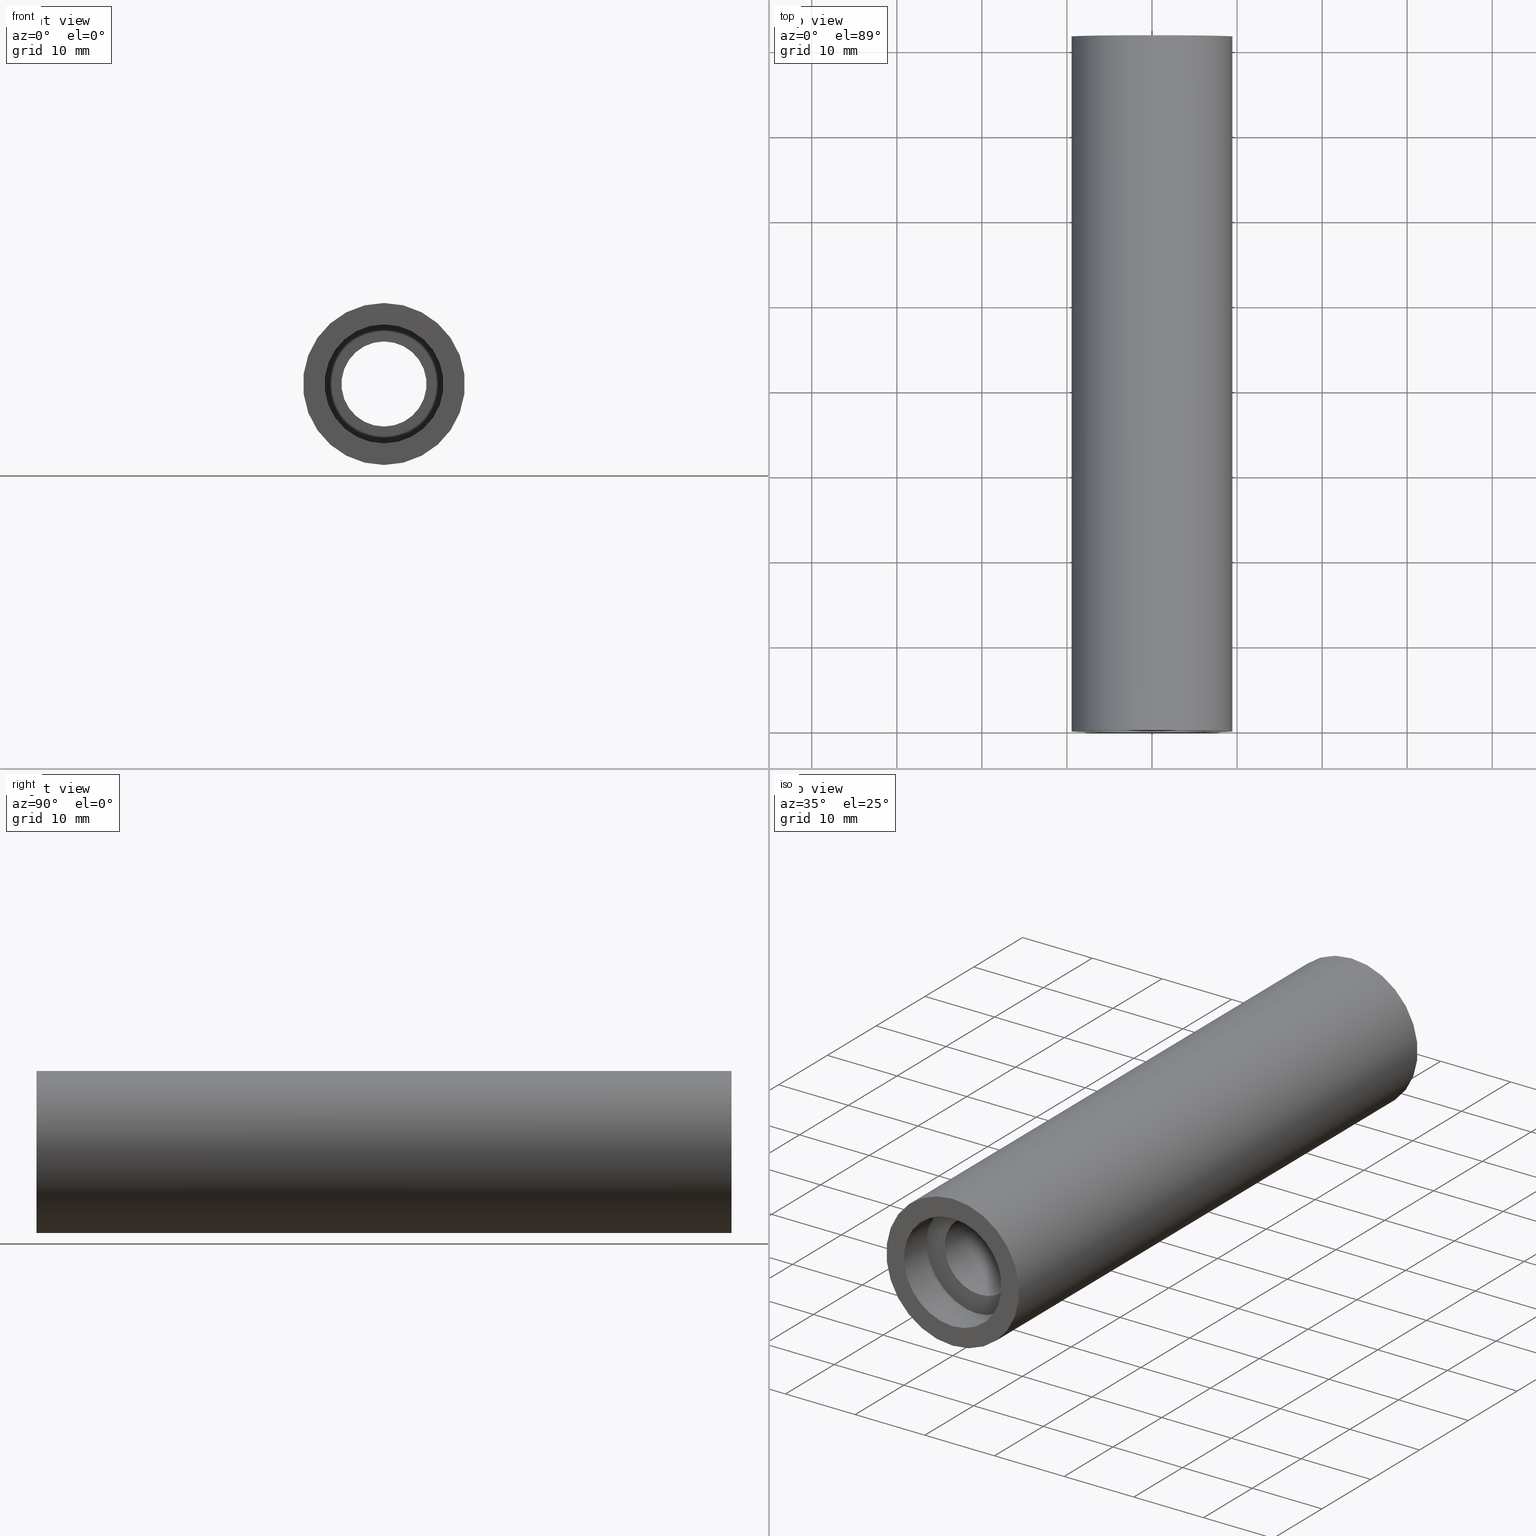
[diagram: canonical four-view strip — front | top / right | iso, engineering-drawing reading convention]
A machine part, canonical four-view strip (front | top / right | iso — engineering-drawing reading convention). The complete STEP part file that produces these views, byte-faithful:
ISO-10303-21;
HEADER;
FILE_DESCRIPTION (( 'STEP AP214' ),
    '1' );
FILE_NAME ('503094.STEP',
    '2019-09-11T07:39:38',
    ( '' ),
    ( '' ),
    'SwSTEP 2.0',
    'SolidWorks 2016',
    '' );
FILE_SCHEMA (( 'AUTOMOTIVE_DESIGN' ));
ENDSEC;

DATA;
#1 = FACE_OUTER_BOUND ( 'NONE', #246, .T. ) ;
#2 = ADVANCED_FACE ( 'NONE', ( #20 ), #486, .F. ) ;
#3 = AXIS2_PLACEMENT_3D ( 'NONE', #559, #416, #271 ) ;
#4 = VERTEX_POINT ( 'NONE', #10 ) ;
#5 = ADVANCED_FACE ( 'NONE', ( #220, #91 ), #57, .F. ) ;
#6 = EDGE_LOOP ( 'NONE', ( #395, #59 ) ) ;
#7 =( GEOMETRIC_REPRESENTATION_CONTEXT ( 3 ) GLOBAL_UNCERTAINTY_ASSIGNED_CONTEXT ( ( #243 ) ) GLOBAL_UNIT_ASSIGNED_CONTEXT ( ( #324, #516, #171 ) ) REPRESENTATION_CONTEXT ( 'NONE', 'WORKASPACE' ) );
#8 = CARTESIAN_POINT ( 'NONE',  ( 1.166476076187856400E-015, 161.3761669434274500, -9.525000000000019900 ) ) ;
#9 = AXIS2_PLACEMENT_3D ( 'NONE', #100, #54, #152 ) ;
#10 = CARTESIAN_POINT ( 'NONE',  ( 0.0000000000000000000, -2.775557561562891400E-014, 9.525000000000019900 ) ) ;
#11 = CYLINDRICAL_SURFACE ( 'NONE', #35, 7.600000000000019200 ) ;
#12 = EDGE_LOOP ( 'NONE', ( #267, #604 ) ) ;
#13 = AXIS2_PLACEMENT_3D ( 'NONE', #410, #501, #365 ) ;
#14 = LINE ( 'NONE', #254, #356 ) ;
#15 =( NAMED_UNIT ( * ) SI_UNIT ( $, .STERADIAN. ) SOLID_ANGLE_UNIT ( ) );
#16 = FILL_AREA_STYLE ('',( #258 ) ) ;
#17 = STYLED_ITEM ( 'NONE', ( #287 ), #431 ) ;
#18 = DIRECTION ( 'NONE',  ( 0.0000000000000000000, 0.0000000000000000000, 1.000000000000000000 ) ) ;
#19 = DIRECTION ( 'NONE',  ( -0.0000000000000000000, 1.000000000000000000, -0.0000000000000000000 ) ) ;
#20 = FACE_OUTER_BOUND ( 'NONE', #84, .T. ) ;
#21 = ORIENTED_EDGE ( 'NONE', *, *, #509, .F. ) ;
#22 = APPLICATION_CONTEXT ( 'automotive_design' ) ;
#23 = CARTESIAN_POINT ( 'NONE',  ( 7.000000000000020400, -1.634585625335647100E-014, 0.0000000000000000000 ) ) ;
#24 = AXIS2_PLACEMENT_3D ( 'NONE', #586, #203, #62 ) ;
#25 = PRODUCT_DEFINITION_SHAPE ( 'NONE', 'NONE',  #304 ) ;
#26 = CARTESIAN_POINT ( 'NONE',  ( 0.0000000000000000000, 77.19999999999997400, 7.600000000000019200 ) ) ;
#27 = DIRECTION ( 'NONE',  ( -0.0000000000000000000, 1.000000000000000000, -0.0000000000000000000 ) ) ;
#28 = VERTEX_POINT ( 'NONE', #394 ) ;
#29 = CARTESIAN_POINT ( 'NONE',  ( 9.307315673519907200E-016, 161.3761669434274500, -7.600000000000019200 ) ) ;
#30 = COLOUR_RGB ( '',1.000000000000000000, 1.000000000000000000, 1.000000000000000000 ) ;
#31 = ORIENTED_EDGE ( 'NONE', *, *, #89, .T. ) ;
#32 = VERTEX_POINT ( 'NONE', #205 ) ;
#33 = DIRECTION ( 'NONE',  ( 0.0000000000000000000, 0.0000000000000000000, 1.000000000000000000 ) ) ;
#34 = DIRECTION ( 'NONE',  ( -0.0000000000000000000, 1.000000000000000000, 0.0000000000000000000 ) ) ;
#35 = AXIS2_PLACEMENT_3D ( 'NONE', #561, #317, #78 ) ;
#36 = PRODUCT_DEFINITION_CONTEXT ( 'detailed design', #373, 'design' ) ;
#37 = CARTESIAN_POINT ( 'NONE',  ( 0.0000000000000000000, 161.3761669434274500, 7.600000000000019200 ) ) ;
#38 = AXIS2_PLACEMENT_3D ( 'NONE', #55, #578, #584 ) ;
#39 = DIRECTION ( 'NONE',  ( 0.0000000000000000000, 0.0000000000000000000, 1.000000000000000000 ) ) ;
#40 = EDGE_LOOP ( 'NONE', ( #48, #228, #164, #183 ) ) ;
#41 = ORIENTED_EDGE ( 'NONE', *, *, #383, .F. ) ;
#42 =( LENGTH_UNIT ( ) NAMED_UNIT ( * ) SI_UNIT ( .MILLI., .METRE. ) );
#43 = AXIS2_PLACEMENT_3D ( 'NONE', #624, #180, #384 ) ;
#44 =( LENGTH_UNIT ( ) NAMED_UNIT ( * ) SI_UNIT ( .MILLI., .METRE. ) );
#45 = EDGE_CURVE ( 'NONE', #529, #337, #321, .T. ) ;
#46 = ORIENTED_EDGE ( 'NONE', *, *, #595, .T. ) ;
#47 = ORIENTED_EDGE ( 'NONE', *, *, #255, .F. ) ;
#48 = ORIENTED_EDGE ( 'NONE', *, *, #49, .F. ) ;
#49 = EDGE_CURVE ( 'NONE', #127, #32, #521, .T. ) ;
#50 = LINE ( 'NONE', #37, #230 ) ;
#51 = ORIENTED_EDGE ( 'NONE', *, *, #120, .F. ) ;
#52 = AXIS2_PLACEMENT_3D ( 'NONE', #133, #570, #39 ) ;
#53 = ORIENTED_EDGE ( 'NONE', *, *, #415, .T. ) ;
#54 = DIRECTION ( 'NONE',  ( -0.0000000000000000000, 1.000000000000000000, -0.0000000000000000000 ) ) ;
#55 = CARTESIAN_POINT ( 'NONE',  ( 0.0000000000000000000, 76.19999999999997400, 0.0000000000000000000 ) ) ;
#56 = UNCERTAINTY_MEASURE_WITH_UNIT (LENGTH_MEASURE( 1.000000000000000100E-005 ), #350, 'distance_accuracy_value', 'NONE');
#57 = PLANE ( 'NONE',  #579 ) ;
#58 = ORIENTED_EDGE ( 'NONE', *, *, #480, .F. ) ;
#59 = ORIENTED_EDGE ( 'NONE', *, *, #573, .F. ) ;
#60 = CARTESIAN_POINT ( 'NONE',  ( 0.0000000000000000000, 77.19999999999997400, 0.0000000000000000000 ) ) ;
#61 = SURFACE_SIDE_STYLE ('',( #396 ) ) ;
#62 = DIRECTION ( 'NONE',  ( 0.0000000000000000000, 0.0000000000000000000, 1.000000000000000000 ) ) ;
#63 = AXIS2_PLACEMENT_3D ( 'NONE', #518, #375, #83 ) ;
#64 =( NAMED_UNIT ( * ) PLANE_ANGLE_UNIT ( ) SI_UNIT ( $, .RADIAN. ) );
#65 =( NAMED_UNIT ( * ) PLANE_ANGLE_UNIT ( ) SI_UNIT ( $, .RADIAN. ) );
#66 = CARTESIAN_POINT ( 'NONE',  ( 9.307315673519907200E-016, 77.19999999999997400, -7.600000000000019200 ) ) ;
#67 = CIRCLE ( 'NONE', #281, 7.200000000000009900 ) ;
#68 =( GEOMETRIC_REPRESENTATION_CONTEXT ( 3 ) GLOBAL_UNCERTAINTY_ASSIGNED_CONTEXT ( ( #160 ) ) GLOBAL_UNIT_ASSIGNED_CONTEXT ( ( #169, #65, #352 ) ) REPRESENTATION_CONTEXT ( 'NONE', 'WORKASPACE' ) );
#69 = CARTESIAN_POINT ( 'NONE',  ( 0.0000000000000000000, 5.499999999999976900, 0.0000000000000000000 ) ) ;
#70 = CARTESIAN_POINT ( 'NONE',  ( 0.0000000000000000000, -2.775557561562891400E-014, 0.0000000000000000000 ) ) ;
#71 = CARTESIAN_POINT ( 'NONE',  ( 1.166476076187856400E-015, 81.69999999999998900, -9.525000000000019900 ) ) ;
#72 = AXIS2_PLACEMENT_3D ( 'NONE', #359, #161, #453 ) ;
#73 = DIRECTION ( 'NONE',  ( -0.0000000000000000000, 1.000000000000000000, -0.0000000000000000000 ) ) ;
#74 = FACE_OUTER_BOUND ( 'NONE', #40, .T. ) ;
#75 = ORIENTED_EDGE ( 'NONE', *, *, #163, .T. ) ;
#76 = ORIENTED_EDGE ( 'NONE', *, *, #469, .F. ) ;
#77 = EDGE_CURVE ( 'NONE', #572, #400, #190, .T. ) ;
#78 = DIRECTION ( 'NONE',  ( 0.0000000000000000000, 0.0000000000000000000, 1.000000000000000000 ) ) ;
#79 = CARTESIAN_POINT ( 'NONE',  ( 5.000000000000019500, 5.499999999999983100, 0.0000000000000000000 ) ) ;
#80 = PRESENTATION_LAYER_ASSIGNMENT (  '', '', ( #234 ) ) ;
#81 = CIRCLE ( 'NONE', #9, 9.525000000000019900 ) ;
#82 = CIRCLE ( 'NONE', #63, 7.000000000000020400 ) ;
#83 = DIRECTION ( 'NONE',  ( 0.0000000000000000000, 0.0000000000000000000, 1.000000000000000000 ) ) ;
#84 = EDGE_LOOP ( 'NONE', ( #47, #97, #92, #461 ) ) ;
#85 = DIRECTION ( 'NONE',  ( -0.0000000000000000000, 1.000000000000000000, -0.0000000000000000000 ) ) ;
#86 = PRESENTATION_LAYER_ASSIGNMENT (  '', '', ( #616 ) ) ;
#87 = CARTESIAN_POINT ( 'NONE',  ( 0.0000000000000000000, 4.499999999999976000, 0.0000000000000000000 ) ) ;
#88 = ADVANCED_FACE ( 'NONE', ( #117 ), #581, .T. ) ;
#89 = EDGE_CURVE ( 'NONE', #590, #151, #571, .T. ) ;
#90 =( NAMED_UNIT ( * ) SI_UNIT ( $, .STERADIAN. ) SOLID_ANGLE_UNIT ( ) );
#91 = FACE_OUTER_BOUND ( 'NONE', #12, .T. ) ;
#92 = ORIENTED_EDGE ( 'NONE', *, *, #329, .T. ) ;
#93 = ORIENTED_EDGE ( 'NONE', *, *, #484, .F. ) ;
#94 = DIRECTION ( 'NONE',  ( 0.0000000000000000000, 0.0000000000000000000, 1.000000000000000000 ) ) ;
#95 = ADVANCED_FACE ( 'NONE', ( #198 ), #339, .F. ) ;
#96 =( GEOMETRIC_REPRESENTATION_CONTEXT ( 3 ) GLOBAL_UNCERTAINTY_ASSIGNED_CONTEXT ( ( #460 ) ) GLOBAL_UNIT_ASSIGNED_CONTEXT ( ( #454, #166, #598 ) ) REPRESENTATION_CONTEXT ( 'NONE', 'WORKASPACE' ) );
#97 = ORIENTED_EDGE ( 'NONE', *, *, #187, .F. ) ;
#98 = FACE_BOUND ( 'NONE', #249, .T. ) ;
#99 = EDGE_CURVE ( 'NONE', #145, #400, #172, .T. ) ;
#100 = CARTESIAN_POINT ( 'NONE',  ( 0.0000000000000000000, 81.69999999999998900, 0.0000000000000000000 ) ) ;
#101 = DIRECTION ( 'NONE',  ( 0.0000000000000000000, 0.0000000000000000000, 1.000000000000000000 ) ) ;
#102 = VECTOR ( 'NONE', #162, 1000.000000000000000 ) ;
#103 = MECHANICAL_DESIGN_GEOMETRIC_PRESENTATION_REPRESENTATION (  '', ( #616 ), #7 ) ;
#104 = ORIENTED_EDGE ( 'NONE', *, *, #329, .F. ) ;
#105 = DIRECTION ( 'NONE',  ( -0.0000000000000000000, 1.000000000000000000, -0.0000000000000000000 ) ) ;
#106 = EDGE_CURVE ( 'NONE', #145, #613, #67, .T. ) ;
#107 = DIRECTION ( 'NONE',  ( -0.0000000000000000000, 1.000000000000000000, -0.0000000000000000000 ) ) ;
#108 = FILL_AREA_STYLE ('',( #502 ) ) ;
#109 = CARTESIAN_POINT ( 'NONE',  ( 0.0000000000000000000, 161.3761669434274500, 0.0000000000000000000 ) ) ;
#110 = MECHANICAL_DESIGN_GEOMETRIC_PRESENTATION_REPRESENTATION (  '', ( #234 ), #179 ) ;
#111 = ORIENTED_EDGE ( 'NONE', *, *, #106, .F. ) ;
#112 = DIRECTION ( 'NONE',  ( -0.0000000000000000000, 1.000000000000000000, -0.0000000000000000000 ) ) ;
#113 = AXIS2_PLACEMENT_3D ( 'NONE', #612, #468, #463 ) ;
#114 = CARTESIAN_POINT ( 'NONE',  ( 0.0000000000000000000, 77.19999999999997400, 7.200000000000009900 ) ) ;
#115 = SURFACE_SIDE_STYLE ('',( #445 ) ) ;
#116 = CARTESIAN_POINT ( 'NONE',  ( 0.0000000000000000000, 4.499999999999976000, 7.600000000000019200 ) ) ;
#117 = FACE_OUTER_BOUND ( 'NONE', #143, .T. ) ;
#118 =( NAMED_UNIT ( * ) PLANE_ANGLE_UNIT ( ) SI_UNIT ( $, .RADIAN. ) );
#119 = ORIENTED_EDGE ( 'NONE', *, *, #390, .F. ) ;
#120 = EDGE_CURVE ( 'NONE', #239, #346, #81, .T. ) ;
#121 = SURFACE_STYLE_USAGE ( .BOTH. , #178 ) ;
#122 = UNCERTAINTY_MEASURE_WITH_UNIT (LENGTH_MEASURE( 1.000000000000000100E-005 ), #270, 'distance_accuracy_value', 'NONE');
#123 = APPLICATION_PROTOCOL_DEFINITION ( 'draft international standard', 'automotive_design', 1998, #373 ) ;
#124 = FACE_OUTER_BOUND ( 'NONE', #540, .T. ) ;
#125 = ORIENTED_EDGE ( 'NONE', *, *, #299, .F. ) ;
#126 = DIRECTION ( 'NONE',  ( 0.0000000000000000000, 0.0000000000000000000, 1.000000000000000000 ) ) ;
#127 = VERTEX_POINT ( 'NONE', #580 ) ;
#128 = DIRECTION ( 'NONE',  ( -0.0000000000000000000, 1.000000000000000000, -0.0000000000000000000 ) ) ;
#129 = PLANE ( 'NONE',  #3 ) ;
#130 = FILL_AREA_STYLE ('',( #233 ) ) ;
#131 = CARTESIAN_POINT ( 'NONE',  ( 0.0000000000000000000, 5.499999999999976900, 5.000000000000019500 ) ) ;
#132 = EDGE_CURVE ( 'NONE', #386, #241, #235, .T. ) ;
#133 = CARTESIAN_POINT ( 'NONE',  ( 0.0000000000000000000, 5.499999999999976900, 0.0000000000000000000 ) ) ;
#134 = DIRECTION ( 'NONE',  ( -0.0000000000000000000, 1.000000000000000000, -0.0000000000000000000 ) ) ;
#135 = ORIENTED_EDGE ( 'NONE', *, *, #480, .T. ) ;
#136 = PRESENTATION_STYLE_ASSIGNMENT (( #403 ) ) ;
#137 = CARTESIAN_POINT ( 'NONE',  ( 0.0000000000000000000, 4.499999999999976000, 7.000000000000020400 ) ) ;
#138 =( GEOMETRIC_REPRESENTATION_CONTEXT ( 3 ) GLOBAL_UNCERTAINTY_ASSIGNED_CONTEXT ( ( #122 ) ) GLOBAL_UNIT_ASSIGNED_CONTEXT ( ( #270, #617, #377 ) ) REPRESENTATION_CONTEXT ( 'NONE', 'WORKASPACE' ) );
#139 = DIRECTION ( 'NONE',  ( -0.0000000000000000000, 1.000000000000000000, -0.0000000000000000000 ) ) ;
#140 = PRODUCT_RELATED_PRODUCT_CATEGORY ( 'part', '', ( #532 ) ) ;
#141 = EDGE_CURVE ( 'NONE', #381, #239, #379, .T. ) ;
#142 = FACE_OUTER_BOUND ( 'NONE', #372, .T. ) ;
#143 = EDGE_LOOP ( 'NONE', ( #257, #345, #425, #51 ) ) ;
#144 = CIRCLE ( 'NONE', #489, 5.000000000000019500 ) ;
#145 = VERTEX_POINT ( 'NONE', #215 ) ;
#146 = EDGE_CURVE ( 'NONE', #312, #440, #275, .T. ) ;
#147 = MECHANICAL_DESIGN_GEOMETRIC_PRESENTATION_REPRESENTATION (  '', ( #17 ), #236 ) ;
#148 = LINE ( 'NONE', #29, #591 ) ;
#149 = DIRECTION ( 'NONE',  ( 0.0000000000000000000, 0.0000000000000000000, 1.000000000000000000 ) ) ;
#150 = CIRCLE ( 'NONE', #43, 7.200000000000009900 ) ;
#151 = VERTEX_POINT ( 'NONE', #26 ) ;
#152 = DIRECTION ( 'NONE',  ( 0.0000000000000000000, 0.0000000000000000000, 1.000000000000000000 ) ) ;
#153 = EDGE_CURVE ( 'NONE', #241, #386, #575, .T. ) ;
#154 = CARTESIAN_POINT ( 'NONE',  ( 6.123233995736789000E-016, 161.3761669434274500, -5.000000000000019500 ) ) ;
#155 = ORIENTED_EDGE ( 'NONE', *, *, #311, .F. ) ;
#156 = ORIENTED_EDGE ( 'NONE', *, *, #219, .F. ) ;
#157 = DIRECTION ( 'NONE',  ( 0.0000000000000000000, 0.0000000000000000000, 1.000000000000000000 ) ) ;
#158 = STYLED_ITEM ( 'NONE', ( #291 ), #562 ) ;
#159 = DIRECTION ( 'NONE',  ( -0.0000000000000000000, 1.000000000000000000, -0.0000000000000000000 ) ) ;
#160 = UNCERTAINTY_MEASURE_WITH_UNIT (LENGTH_MEASURE( 1.000000000000000100E-005 ), #169, 'distance_accuracy_value', 'NONE');
#161 = DIRECTION ( 'NONE',  ( 0.0000000000000000000, -1.000000000000000000, 0.0000000000000000000 ) ) ;
#162 = DIRECTION ( 'NONE',  ( -0.0000000000000000000, 1.000000000000000000, -0.0000000000000000000 ) ) ;
#163 = EDGE_CURVE ( 'NONE', #583, #28, #475, .T. ) ;
#164 = ORIENTED_EDGE ( 'NONE', *, *, #146, .T. ) ;
#165 = ORIENTED_EDGE ( 'NONE', *, *, #537, .F. ) ;
#166 =( NAMED_UNIT ( * ) PLANE_ANGLE_UNIT ( ) SI_UNIT ( $, .RADIAN. ) );
#167 = CARTESIAN_POINT ( 'NONE',  ( 0.0000000000000000000, 161.3761669434274500, 0.0000000000000000000 ) ) ;
#168 = DIRECTION ( 'NONE',  ( -0.0000000000000000000, 1.000000000000000000, -0.0000000000000000000 ) ) ;
#169 =( LENGTH_UNIT ( ) NAMED_UNIT ( * ) SI_UNIT ( .MILLI., .METRE. ) );
#170 = AXIS2_PLACEMENT_3D ( 'NONE', #507, #112, #404 ) ;
#171 =( NAMED_UNIT ( * ) SI_UNIT ( $, .STERADIAN. ) SOLID_ANGLE_UNIT ( ) );
#172 = LINE ( 'NONE', #441, #620 ) ;
#173 = PRESENTATION_STYLE_ASSIGNMENT (( #477 ) ) ;
#174 = ORIENTED_EDGE ( 'NONE', *, *, #187, .T. ) ;
#175 = PRESENTATION_LAYER_ASSIGNMENT (  '', '', ( #17 ) ) ;
#176 = ORIENTED_EDGE ( 'NONE', *, *, #99, .T. ) ;
#177 = DIRECTION ( 'NONE',  ( 0.0000000000000000000, 0.0000000000000000000, 1.000000000000000000 ) ) ;
#178 = SURFACE_SIDE_STYLE ('',( #197 ) ) ;
#179 =( GEOMETRIC_REPRESENTATION_CONTEXT ( 3 ) GLOBAL_UNCERTAINTY_ASSIGNED_CONTEXT ( ( #208 ) ) GLOBAL_UNIT_ASSIGNED_CONTEXT ( ( #402, #118, #218 ) ) REPRESENTATION_CONTEXT ( 'NONE', 'WORKASPACE' ) );
#180 = DIRECTION ( 'NONE',  ( -0.0000000000000000000, 1.000000000000000000, -0.0000000000000000000 ) ) ;
#181 = LINE ( 'NONE', #615, #273 ) ;
#182 = CARTESIAN_POINT ( 'NONE',  ( 0.0000000000000000000, 76.19999999999997400, 0.0000000000000000000 ) ) ;
#183 = ORIENTED_EDGE ( 'NONE', *, *, #484, .T. ) ;
#184 = AXIS2_PLACEMENT_3D ( 'NONE', #567, #274, #473 ) ;
#185 = LINE ( 'NONE', #297, #289 ) ;
#186 = CARTESIAN_POINT ( 'NONE',  ( 0.0000000000000000000, 161.3761669434274500, 0.0000000000000000000 ) ) ;
#187 = EDGE_CURVE ( 'NONE', #528, #555, #563, .T. ) ;
#188 = ADVANCED_FACE ( 'NONE', ( #423 ), #602, .F. ) ;
#189 = SURFACE_STYLE_USAGE ( .BOTH. , #614 ) ;
#190 = CIRCLE ( 'NONE', #444, 7.200000000000009900 ) ;
#191 = DIRECTION ( 'NONE',  ( 0.0000000000000000000, 0.0000000000000000000, 1.000000000000000000 ) ) ;
#192 = EDGE_LOOP ( 'NONE', ( #93, #119 ) ) ;
#193 = ADVANCED_FACE ( 'NONE', ( #74 ), #494, .F. ) ;
#194 = ORIENTED_EDGE ( 'NONE', *, *, #338, .F. ) ;
#195 = ADVANCED_FACE ( 'NONE', ( #421, #589 ), #493, .F. ) ;
#196 = PRESENTATION_LAYER_ASSIGNMENT (  '', '', ( #158 ) ) ;
#197 = SURFACE_STYLE_FILL_AREA ( #557 ) ;
#198 = FACE_OUTER_BOUND ( 'NONE', #232, .T. ) ;
#199 = CIRCLE ( 'NONE', #464, 7.000000000000020400 ) ;
#200 = ADVANCED_FACE ( 'NONE', ( #124 ), #265, .F. ) ;
#201 = DIRECTION ( 'NONE',  ( 0.0000000000000000000, 0.0000000000000000000, 1.000000000000000000 ) ) ;
#202 = AXIS2_PLACEMENT_3D ( 'NONE', #182, #378, #565 ) ;
#203 = DIRECTION ( 'NONE',  ( -0.0000000000000000000, 1.000000000000000000, -0.0000000000000000000 ) ) ;
#204 = ORIENTED_EDGE ( 'NONE', *, *, #427, .F. ) ;
#205 = CARTESIAN_POINT ( 'NONE',  ( 8.572527594031496900E-016, 4.499999999999976000, -7.000000000000020400 ) ) ;
#206 = MECHANICAL_DESIGN_GEOMETRIC_PRESENTATION_REPRESENTATION (  '', ( #307 ), #138 ) ;
#207 = CARTESIAN_POINT ( 'NONE',  ( 0.0000000000000000000, 81.69999999999997400, 0.0000000000000000000 ) ) ;
#208 = UNCERTAINTY_MEASURE_WITH_UNIT (LENGTH_MEASURE( 1.000000000000000100E-005 ), #402, 'distance_accuracy_value', 'NONE');
#209 = STYLED_ITEM ( 'NONE', ( #539 ), #193 ) ;
#210 =( NAMED_UNIT ( * ) SI_UNIT ( $, .STERADIAN. ) SOLID_ANGLE_UNIT ( ) );
#211 = VERTEX_POINT ( 'NONE', #594 ) ;
#212 = CARTESIAN_POINT ( 'NONE',  ( 0.0000000000000000000, 81.69999999999997400, 0.0000000000000000000 ) ) ;
#213 = ORIENTED_EDGE ( 'NONE', *, *, #360, .F. ) ;
#214 = SURFACE_SIDE_STYLE ('',( #446 ) ) ;
#215 = CARTESIAN_POINT ( 'NONE',  ( 8.817456953860955100E-016, 77.19999999999997400, -7.200000000000009900 ) ) ;
#216 = AXIS2_PLACEMENT_3D ( 'NONE', #382, #429, #330 ) ;
#217 = UNCERTAINTY_MEASURE_WITH_UNIT (LENGTH_MEASURE( 1.000000000000000100E-005 ), #593, 'distance_accuracy_value', 'NONE');
#218 =( NAMED_UNIT ( * ) SI_UNIT ( $, .STERADIAN. ) SOLID_ANGLE_UNIT ( ) );
#219 = EDGE_CURVE ( 'NONE', #400, #572, #482, .T. ) ;
#220 = FACE_BOUND ( 'NONE', #6, .T. ) ;
#221 = COLOUR_RGB ( '',1.000000000000000000, 1.000000000000000000, 1.000000000000000000 ) ;
#222 = ORIENTED_EDGE ( 'NONE', *, *, #132, .F. ) ;
#223 = CARTESIAN_POINT ( 'NONE',  ( 0.0000000000000000000, -2.775557561562891400E-014, 0.0000000000000000000 ) ) ;
#224 = EDGE_LOOP ( 'NONE', ( #111, #176, #492, #388 ) ) ;
#225 = CARTESIAN_POINT ( 'NONE',  ( 1.166476076187856400E-015, -2.775557561562891400E-014, -9.525000000000019900 ) ) ;
#226 = VECTOR ( 'NONE', #134, 1000.000000000000000 ) ;
#227 = DIRECTION ( 'NONE',  ( -0.0000000000000000000, 1.000000000000000000, -0.0000000000000000000 ) ) ;
#228 = ORIENTED_EDGE ( 'NONE', *, *, #595, .F. ) ;
#229 = MECHANICAL_DESIGN_GEOMETRIC_PRESENTATION_REPRESENTATION (  '', ( #158 ), #355 ) ;
#230 = VECTOR ( 'NONE', #414, 1000.000000000000000 ) ;
#231 = DIRECTION ( 'NONE',  ( -0.0000000000000000000, 1.000000000000000000, -0.0000000000000000000 ) ) ;
#232 = EDGE_LOOP ( 'NONE', ( #284, #391, #31, #165 ) ) ;
#233 = FILL_AREA_STYLE_COLOUR ( '', #522 ) ;
#234 = STYLED_ITEM ( 'NONE', ( #438 ), #188 ) ;
#235 = CIRCLE ( 'NONE', #38, 7.600000000000019200 ) ;
#236 =( GEOMETRIC_REPRESENTATION_CONTEXT ( 3 ) GLOBAL_UNCERTAINTY_ASSIGNED_CONTEXT ( ( #526 ) ) GLOBAL_UNIT_ASSIGNED_CONTEXT ( ( #44, #272, #622 ) ) REPRESENTATION_CONTEXT ( 'NONE', 'WORKASPACE' ) );
#237 = MECHANICAL_DESIGN_GEOMETRIC_PRESENTATION_REPRESENTATION (  '', ( #535 ), #295 ) ;
#238 = ADVANCED_FACE ( 'NONE', ( #1, #466 ), #301, .F. ) ;
#239 = VERTEX_POINT ( 'NONE', #71 ) ;
#240 = LINE ( 'NONE', #268, #226 ) ;
#241 = VERTEX_POINT ( 'NONE', #511 ) ;
#242 = AXIS2_PLACEMENT_3D ( 'NONE', #534, #488, #201 ) ;
#243 = UNCERTAINTY_MEASURE_WITH_UNIT (LENGTH_MEASURE( 1.000000000000000100E-005 ), #324, 'distance_accuracy_value', 'NONE');
#244 = AXIS2_PLACEMENT_3D ( 'NONE', #70, #227, #157 ) ;
#245 = EDGE_LOOP ( 'NONE', ( #452, #523, #204, #41 ) ) ;
#246 = EDGE_LOOP ( 'NONE', ( #370, #21 ) ) ;
#247 = EDGE_CURVE ( 'NONE', #392, #529, #144, .T. ) ;
#248 = DIRECTION ( 'NONE',  ( -0.0000000000000000000, 1.000000000000000000, -0.0000000000000000000 ) ) ;
#249 = EDGE_LOOP ( 'NONE', ( #292, #336 ) ) ;
#250 = CARTESIAN_POINT ( 'NONE',  ( 9.307315673519907200E-016, 4.499999999999976000, -7.600000000000019200 ) ) ;
#251 = DIRECTION ( 'NONE',  ( 0.0000000000000000000, 0.0000000000000000000, 1.000000000000000000 ) ) ;
#252 = AXIS2_PLACEMENT_3D ( 'NONE', #212, #550, #309 ) ;
#253 = DIRECTION ( 'NONE',  ( -0.0000000000000000000, 1.000000000000000000, -0.0000000000000000000 ) ) ;
#254 = CARTESIAN_POINT ( 'NONE',  ( 0.0000000000000000000, 161.3761669434274500, 7.600000000000019200 ) ) ;
#255 = EDGE_CURVE ( 'NONE', #555, #583, #181, .T. ) ;
#256 = DIRECTION ( 'NONE',  ( 0.0000000000000000000, 0.0000000000000000000, 1.000000000000000000 ) ) ;
#257 = ORIENTED_EDGE ( 'NONE', *, *, #141, .F. ) ;
#258 = FILL_AREA_STYLE_COLOUR ( '', #430 ) ;
#259 = APPLICATION_PROTOCOL_DEFINITION ( 'draft international standard', 'automotive_design', 1998, #22 ) ;
#260 = FILL_AREA_STYLE_COLOUR ( '', #343 ) ;
#261 = CIRCLE ( 'NONE', #398, 5.000000000000019500 ) ;
#262 =( GEOMETRIC_REPRESENTATION_CONTEXT ( 3 ) GLOBAL_UNCERTAINTY_ASSIGNED_CONTEXT ( ( #293 ) ) GLOBAL_UNIT_ASSIGNED_CONTEXT ( ( #42, #327, #90 ) ) REPRESENTATION_CONTEXT ( 'NONE', 'WORKASPACE' ) );
#263 = CARTESIAN_POINT ( 'NONE',  ( 0.0000000000000000000, 81.69999999999998900, 9.525000000000019900 ) ) ;
#264 = STYLED_ITEM ( 'NONE', ( #173 ), #436 ) ;
#265 = CYLINDRICAL_SURFACE ( 'NONE', #577, 7.600000000000019200 ) ;
#266 = CYLINDRICAL_SURFACE ( 'NONE', #420, 5.000000000000019500 ) ;
#267 = ORIENTED_EDGE ( 'NONE', *, *, #132, .T. ) ;
#268 = CARTESIAN_POINT ( 'NONE',  ( 0.0000000000000000000, 161.3761669434274500, 9.525000000000019900 ) ) ;
#269 = AXIS2_PLACEMENT_3D ( 'NONE', #544, #597, #498 ) ;
#270 =( LENGTH_UNIT ( ) NAMED_UNIT ( * ) SI_UNIT ( .MILLI., .METRE. ) );
#271 = DIRECTION ( 'NONE',  ( 0.0000000000000000000, -0.0000000000000000000, -1.000000000000000000 ) ) ;
#272 =( NAMED_UNIT ( * ) PLANE_ANGLE_UNIT ( ) SI_UNIT ( $, .RADIAN. ) );
#273 = VECTOR ( 'NONE', #73, 1000.000000000000000 ) ;
#274 = DIRECTION ( 'NONE',  ( -0.0000000000000000000, 1.000000000000000000, -0.0000000000000000000 ) ) ;
#275 = LINE ( 'NONE', #342, #102 ) ;
#276 = AXIS2_PLACEMENT_3D ( 'NONE', #69, #308, #18 ) ;
#277 = CIRCLE ( 'NONE', #52, 7.600000000000019200 ) ;
#278 = SURFACE_SIDE_STYLE ('',( #363 ) ) ;
#279 = ADVANCED_FACE ( 'NONE', ( #142, #98 ), #510, .F. ) ;
#280 = DIRECTION ( 'NONE',  ( 0.0000000000000000000, 0.0000000000000000000, 1.000000000000000000 ) ) ;
#281 = AXIS2_PLACEMENT_3D ( 'NONE', #296, #348, #149 ) ;
#282 = COLOUR_RGB ( '',1.000000000000000000, 1.000000000000000000, 1.000000000000000000 ) ;
#283 = ORIENTED_EDGE ( 'NONE', *, *, #437, .F. ) ;
#284 = ORIENTED_EDGE ( 'NONE', *, *, #153, .F. ) ;
#285 = AXIS2_PLACEMENT_3D ( 'NONE', #472, #139, #319 ) ;
#286 = FACE_OUTER_BOUND ( 'NONE', #467, .T. ) ;
#287 = PRESENTATION_STYLE_ASSIGNMENT (( #189 ) ) ;
#288 = EDGE_LOOP ( 'NONE', ( #46, #487 ) ) ;
#289 = VECTOR ( 'NONE', #546, 1000.000000000000000 ) ;
#290 = DIRECTION ( 'NONE',  ( -0.0000000000000000000, 1.000000000000000000, -0.0000000000000000000 ) ) ;
#291 = PRESENTATION_STYLE_ASSIGNMENT (( #542 ) ) ;
#292 = ORIENTED_EDGE ( 'NONE', *, *, #247, .T. ) ;
#293 = UNCERTAINTY_MEASURE_WITH_UNIT (LENGTH_MEASURE( 1.000000000000000100E-005 ), #42, 'distance_accuracy_value', 'NONE');
#294 = ORIENTED_EDGE ( 'NONE', *, *, #163, .F. ) ;
#295 =( GEOMETRIC_REPRESENTATION_CONTEXT ( 3 ) GLOBAL_UNCERTAINTY_ASSIGNED_CONTEXT ( ( #217 ) ) GLOBAL_UNIT_ASSIGNED_CONTEXT ( ( #593, #306, #15 ) ) REPRESENTATION_CONTEXT ( 'NONE', 'WORKASPACE' ) );
#296 = CARTESIAN_POINT ( 'NONE',  ( 0.0000000000000000000, 77.19999999999997400, 0.0000000000000000000 ) ) ;
#297 = CARTESIAN_POINT ( 'NONE',  ( 0.0000000000000000000, 161.3761669434274500, 7.200000000000009900 ) ) ;
#298 = DIRECTION ( 'NONE',  ( 0.0000000000000000000, 0.0000000000000000000, 1.000000000000000000 ) ) ;
#299 = EDGE_CURVE ( 'NONE', #127, #312, #353, .T. ) ;
#300 = CARTESIAN_POINT ( 'NONE',  ( 6.123233995736789000E-016, 5.499999999999976900, -5.000000000000019500 ) ) ;
#301 = PLANE ( 'NONE',  #504 ) ;
#302 = VECTOR ( 'NONE', #107, 1000.000000000000000 ) ;
#303 = SURFACE_STYLE_FILL_AREA ( #519 ) ;
#304 = PRODUCT_DEFINITION ( 'δ֪', '', #407, #36 ) ;
#305 = ORIENTED_EDGE ( 'NONE', *, *, #106, .T. ) ;
#306 =( NAMED_UNIT ( * ) PLANE_ANGLE_UNIT ( ) SI_UNIT ( $, .RADIAN. ) );
#307 = STYLED_ITEM ( 'NONE', ( #380 ), #495 ) ;
#308 = DIRECTION ( 'NONE',  ( -0.0000000000000000000, 1.000000000000000000, -0.0000000000000000000 ) ) ;
#309 = DIRECTION ( 'NONE',  ( 0.0000000000000000000, 0.0000000000000000000, 1.000000000000000000 ) ) ;
#310 = FILL_AREA_STYLE ('',( #601 ) ) ;
#311 = EDGE_CURVE ( 'NONE', #241, #590, #148, .T. ) ;
#312 = VERTEX_POINT ( 'NONE', #419 ) ;
#313 = CARTESIAN_POINT ( 'NONE',  ( 0.0000000000000000000, 5.499999999999976900, 0.0000000000000000000 ) ) ;
#314 = EDGE_LOOP ( 'NONE', ( #447, #305 ) ) ;
#315 = CLOSED_SHELL ( 'NONE', ( #525, #200, #431, #95, #436, #385, #238, #88, #331, #334, #568, #340, #5, #188, #279, #2, #195, #193 ) ) ;
#316 = DIRECTION ( 'NONE',  ( 0.0000000000000000000, 0.0000000000000000000, 1.000000000000000000 ) ) ;
#317 = DIRECTION ( 'NONE',  ( -0.0000000000000000000, 1.000000000000000000, -0.0000000000000000000 ) ) ;
#318 = AXIS2_PLACEMENT_3D ( 'NONE', #79, #34, #368 ) ;
#319 = DIRECTION ( 'NONE',  ( 0.0000000000000000000, 0.0000000000000000000, 1.000000000000000000 ) ) ;
#320 = CIRCLE ( 'NONE', #545, 7.000000000000020400 ) ;
#321 = LINE ( 'NONE', #154, #302 ) ;
#322 = CIRCLE ( 'NONE', #276, 5.000000000000019500 ) ;
#323 = PRODUCT_CONTEXT ( 'NONE', #22, 'mechanical' ) ;
#324 =( LENGTH_UNIT ( ) NAMED_UNIT ( * ) SI_UNIT ( .MILLI., .METRE. ) );
#325 = EDGE_LOOP ( 'NONE', ( #155, #222, #566, #558 ) ) ;
#326 = CYLINDRICAL_SURFACE ( 'NONE', #435, 7.000000000000020400 ) ;
#327 =( NAMED_UNIT ( * ) PLANE_ANGLE_UNIT ( ) SI_UNIT ( $, .RADIAN. ) );
#328 = FILL_AREA_STYLE ('',( #471 ) ) ;
#329 = EDGE_CURVE ( 'NONE', #528, #28, #50, .T. ) ;
#330 = DIRECTION ( 'NONE',  ( 0.0000000000000000000, 0.0000000000000000000, 1.000000000000000000 ) ) ;
#331 = ADVANCED_FACE ( 'NONE', ( #512, #610 ), #129, .F. ) ;
#332 = CARTESIAN_POINT ( 'NONE',  ( 0.0000000000000000000, 161.3761669434274500, 5.000000000000019500 ) ) ;
#333 = SURFACE_STYLE_FILL_AREA ( #543 ) ;
#334 = ADVANCED_FACE ( 'NONE', ( #286 ), #371, .F. ) ;
#335 = LINE ( 'NONE', #332, #424 ) ;
#336 = ORIENTED_EDGE ( 'NONE', *, *, #524, .T. ) ;
#337 = VERTEX_POINT ( 'NONE', #514 ) ;
#338 = EDGE_CURVE ( 'NONE', #555, #528, #574, .T. ) ;
#339 = CYLINDRICAL_SURFACE ( 'NONE', #24, 7.600000000000019200 ) ;
#340 = ADVANCED_FACE ( 'NONE', ( #349 ), #11, .F. ) ;
#341 = MECHANICAL_DESIGN_GEOMETRIC_PRESENTATION_REPRESENTATION (  '', ( #264 ), #262 ) ;
#342 = CARTESIAN_POINT ( 'NONE',  ( 0.0000000000000000000, 161.3761669434274500, 7.000000000000020400 ) ) ;
#343 = COLOUR_RGB ( '',1.000000000000000000, 1.000000000000000000, 1.000000000000000000 ) ;
#344 = CIRCLE ( 'NONE', #285, 9.525000000000019900 ) ;
#345 = ORIENTED_EDGE ( 'NONE', *, *, #509, .T. ) ;
#346 = VERTEX_POINT ( 'NONE', #263 ) ;
#347 = CARTESIAN_POINT ( 'NONE',  ( 8.572527594031496900E-016, 161.3761669434274500, -7.000000000000020400 ) ) ;
#348 = DIRECTION ( 'NONE',  ( -0.0000000000000000000, 1.000000000000000000, -0.0000000000000000000 ) ) ;
#349 = FACE_OUTER_BOUND ( 'NONE', #325, .T. ) ;
#350 =( LENGTH_UNIT ( ) NAMED_UNIT ( * ) SI_UNIT ( .MILLI., .METRE. ) );
#351 = ORIENTED_EDGE ( 'NONE', *, *, #89, .F. ) ;
#352 =( NAMED_UNIT ( * ) SI_UNIT ( $, .STERADIAN. ) SOLID_ANGLE_UNIT ( ) );
#353 = CIRCLE ( 'NONE', #412, 7.000000000000020400 ) ;
#354 = ORIENTED_EDGE ( 'NONE', *, *, #338, .T. ) ;
#355 =( GEOMETRIC_REPRESENTATION_CONTEXT ( 3 ) GLOBAL_UNCERTAINTY_ASSIGNED_CONTEXT ( ( #56 ) ) GLOBAL_UNIT_ASSIGNED_CONTEXT ( ( #350, #64, #210 ) ) REPRESENTATION_CONTEXT ( 'NONE', 'WORKASPACE' ) );
#356 = VECTOR ( 'NONE', #168, 1000.000000000000000 ) ;
#357 = PLANE ( 'NONE',  #367 ) ;
#358 = DIRECTION ( 'NONE',  ( -0.0000000000000000000, 1.000000000000000000, 0.0000000000000000000 ) ) ;
#359 = CARTESIAN_POINT ( 'NONE',  ( 7.000000000000020400, 4.499999999999983100, 0.0000000000000000000 ) ) ;
#360 = EDGE_CURVE ( 'NONE', #151, #590, #520, .T. ) ;
#361 = DIRECTION ( 'NONE',  ( 0.0000000000000000000, 0.0000000000000000000, 1.000000000000000000 ) ) ;
#362 = VECTOR ( 'NONE', #248, 1000.000000000000000 ) ;
#363 = SURFACE_STYLE_FILL_AREA ( #130 ) ;
#364 = ORIENTED_EDGE ( 'NONE', *, *, #573, .T. ) ;
#365 = DIRECTION ( 'NONE',  ( 0.0000000000000000000, 0.0000000000000000000, 1.000000000000000000 ) ) ;
#366 = DIRECTION ( 'NONE',  ( -0.0000000000000000000, 1.000000000000000000, -0.0000000000000000000 ) ) ;
#367 = AXIS2_PLACEMENT_3D ( 'NONE', #401, #358, #256 ) ;
#368 = DIRECTION ( 'NONE',  ( 0.0000000000000000000, 0.0000000000000000000, 1.000000000000000000 ) ) ;
#369 = COLOUR_RGB ( '',1.000000000000000000, 1.000000000000000000, 1.000000000000000000 ) ;
#370 = ORIENTED_EDGE ( 'NONE', *, *, #456, .F. ) ;
#371 = CYLINDRICAL_SURFACE ( 'NONE', #113, 7.200000000000009900 ) ;
#372 = EDGE_LOOP ( 'NONE', ( #283, #294 ) ) ;
#373 = APPLICATION_CONTEXT ( 'automotive_design' ) ;
#374 = AXIS2_PLACEMENT_3D ( 'NONE', #109, #253, #298 ) ;
#375 = DIRECTION ( 'NONE',  ( -0.0000000000000000000, 1.000000000000000000, -0.0000000000000000000 ) ) ;
#376 = FILL_AREA_STYLE_COLOUR ( '', #30 ) ;
#377 =( NAMED_UNIT ( * ) SI_UNIT ( $, .STERADIAN. ) SOLID_ANGLE_UNIT ( ) );
#378 = DIRECTION ( 'NONE',  ( -0.0000000000000000000, 1.000000000000000000, -0.0000000000000000000 ) ) ;
#379 = LINE ( 'NONE', #8, #362 ) ;
#380 = PRESENTATION_STYLE_ASSIGNMENT (( #515 ) ) ;
#381 = VERTEX_POINT ( 'NONE', #225 ) ;
#382 = CARTESIAN_POINT ( 'NONE',  ( 0.0000000000000000000, 161.3761669434274500, 0.0000000000000000000 ) ) ;
#383 = EDGE_CURVE ( 'NONE', #4, #346, #240, .T. ) ;
#384 = DIRECTION ( 'NONE',  ( 0.0000000000000000000, 0.0000000000000000000, 1.000000000000000000 ) ) ;
#385 = ADVANCED_FACE ( 'NONE', ( #399 ), #505, .T. ) ;
#386 = VERTEX_POINT ( 'NONE', #618 ) ;
#387 = COLOUR_RGB ( '',1.000000000000000000, 1.000000000000000000, 1.000000000000000000 ) ;
#388 = ORIENTED_EDGE ( 'NONE', *, *, #607, .F. ) ;
#389 = DIRECTION ( 'NONE',  ( -0.0000000000000000000, 1.000000000000000000, -0.0000000000000000000 ) ) ;
#390 = EDGE_CURVE ( 'NONE', #32, #440, #320, .T. ) ;
#391 = ORIENTED_EDGE ( 'NONE', *, *, #311, .T. ) ;
#392 = VERTEX_POINT ( 'NONE', #131 ) ;
#393 = CARTESIAN_POINT ( 'NONE',  ( 5.000000000000019500, 76.19999999999997400, 0.0000000000000000000 ) ) ;
#394 = CARTESIAN_POINT ( 'NONE',  ( 0.0000000000000000000, 5.499999999999976900, 7.600000000000019200 ) ) ;
#395 = ORIENTED_EDGE ( 'NONE', *, *, #415, .F. ) ;
#396 = SURFACE_STYLE_FILL_AREA ( #310 ) ;
#397 = ORIENTED_EDGE ( 'NONE', *, *, #390, .T. ) ;
#398 = AXIS2_PLACEMENT_3D ( 'NONE', #552, #159, #497 ) ;
#399 = FACE_OUTER_BOUND ( 'NONE', #245, .T. ) ;
#400 = VERTEX_POINT ( 'NONE', #426 ) ;
#401 = CARTESIAN_POINT ( 'NONE',  ( 7.200000000000009900, 77.19999999999997400, 0.0000000000000000000 ) ) ;
#402 =( LENGTH_UNIT ( ) NAMED_UNIT ( * ) SI_UNIT ( .MILLI., .METRE. ) );
#403 = SURFACE_STYLE_USAGE ( .BOTH. , #214 ) ;
#404 = DIRECTION ( 'NONE',  ( 0.0000000000000000000, 0.0000000000000000000, 1.000000000000000000 ) ) ;
#405 = PRESENTATION_LAYER_ASSIGNMENT (  '', '', ( #209 ) ) ;
#406 = SURFACE_STYLE_USAGE ( .BOTH. , #603 ) ;
#407 = PRODUCT_DEFINITION_FORMATION_WITH_SPECIFIED_SOURCE ( '�κ�', '', #532, .NOT_KNOWN. ) ;
#408 = PRESENTATION_STYLE_ASSIGNMENT (( #121 ) ) ;
#409 = ORIENTED_EDGE ( 'NONE', *, *, #45, .F. ) ;
#410 = CARTESIAN_POINT ( 'NONE',  ( 0.0000000000000000000, 76.19999999999997400, 0.0000000000000000000 ) ) ;
#411 = ORIENTED_EDGE ( 'NONE', *, *, #607, .T. ) ;
#412 = AXIS2_PLACEMENT_3D ( 'NONE', #223, #27, #608 ) ;
#413 = DIRECTION ( 'NONE',  ( 0.0000000000000000000, 0.0000000000000000000, 1.000000000000000000 ) ) ;
#414 = DIRECTION ( 'NONE',  ( -0.0000000000000000000, 1.000000000000000000, -0.0000000000000000000 ) ) ;
#415 = EDGE_CURVE ( 'NONE', #211, #337, #490, .T. ) ;
#416 = DIRECTION ( 'NONE',  ( 0.0000000000000000000, -1.000000000000000000, 0.0000000000000000000 ) ) ;
#417 = ORIENTED_EDGE ( 'NONE', *, *, #49, .T. ) ;
#418 = DIRECTION ( 'NONE',  ( -0.0000000000000000000, 1.000000000000000000, -0.0000000000000000000 ) ) ;
#419 = CARTESIAN_POINT ( 'NONE',  ( 0.0000000000000000000, -2.775557561562891400E-014, 7.000000000000020400 ) ) ;
#420 = AXIS2_PLACEMENT_3D ( 'NONE', #186, #231, #280 ) ;
#421 = FACE_BOUND ( 'NONE', #192, .T. ) ;
#422 = DIRECTION ( 'NONE',  ( 0.0000000000000000000, 0.0000000000000000000, 1.000000000000000000 ) ) ;
#423 = FACE_OUTER_BOUND ( 'NONE', #459, .T. ) ;
#424 = VECTOR ( 'NONE', #128, 1000.000000000000000 ) ;
#425 = ORIENTED_EDGE ( 'NONE', *, *, #383, .T. ) ;
#426 = CARTESIAN_POINT ( 'NONE',  ( 8.817456953860955100E-016, 81.69999999999997400, -7.200000000000009900 ) ) ;
#427 = EDGE_CURVE ( 'NONE', #346, #239, #344, .T. ) ;
#428 = SURFACE_SIDE_STYLE ('',( #432 ) ) ;
#429 = DIRECTION ( 'NONE',  ( -0.0000000000000000000, 1.000000000000000000, -0.0000000000000000000 ) ) ;
#430 = COLOUR_RGB ( '',1.000000000000000000, 1.000000000000000000, 1.000000000000000000 ) ;
#431 = ADVANCED_FACE ( 'NONE', ( #439 ), #266, .F. ) ;
#432 = SURFACE_STYLE_FILL_AREA ( #328 ) ;
#433 = EDGE_LOOP ( 'NONE', ( #513, #576, #364, #58 ) ) ;
#434 = EDGE_LOOP ( 'NONE', ( #527, #533 ) ) ;
#435 = AXIS2_PLACEMENT_3D ( 'NONE', #500, #457, #448 ) ;
#436 = ADVANCED_FACE ( 'NONE', ( #582 ), #458, .F. ) ;
#437 = EDGE_CURVE ( 'NONE', #28, #583, #277, .T. ) ;
#438 = PRESENTATION_STYLE_ASSIGNMENT (( #406 ) ) ;
#439 = FACE_OUTER_BOUND ( 'NONE', #433, .T. ) ;
#440 = VERTEX_POINT ( 'NONE', #137 ) ;
#441 = CARTESIAN_POINT ( 'NONE',  ( 8.817456953860955100E-016, 161.3761669434274500, -7.200000000000009900 ) ) ;
#442 = AXIS2_PLACEMENT_3D ( 'NONE', #462, #366, #126 ) ;
#443 = DIRECTION ( 'NONE',  ( 0.0000000000000000000, -0.0000000000000000000, -1.000000000000000000 ) ) ;
#444 = AXIS2_PLACEMENT_3D ( 'NONE', #207, #538, #101 ) ;
#445 = SURFACE_STYLE_FILL_AREA ( #16 ) ;
#446 = SURFACE_STYLE_FILL_AREA ( #108 ) ;
#447 = ORIENTED_EDGE ( 'NONE', *, *, #469, .T. ) ;
#448 = DIRECTION ( 'NONE',  ( 0.0000000000000000000, 0.0000000000000000000, 1.000000000000000000 ) ) ;
#449 = DIRECTION ( 'NONE',  ( -0.0000000000000000000, 1.000000000000000000, -0.0000000000000000000 ) ) ;
#450 = ORIENTED_EDGE ( 'NONE', *, *, #255, .T. ) ;
#451 = CIRCLE ( 'NONE', #244, 9.525000000000019900 ) ;
#452 = ORIENTED_EDGE ( 'NONE', *, *, #456, .T. ) ;
#453 = DIRECTION ( 'NONE',  ( 0.0000000000000000000, -0.0000000000000000000, -1.000000000000000000 ) ) ;
#454 =( LENGTH_UNIT ( ) NAMED_UNIT ( * ) SI_UNIT ( .MILLI., .METRE. ) );
#455 = DIRECTION ( 'NONE',  ( -0.0000000000000000000, 1.000000000000000000, 0.0000000000000000000 ) ) ;
#456 = EDGE_CURVE ( 'NONE', #4, #381, #564, .T. ) ;
#457 = DIRECTION ( 'NONE',  ( -0.0000000000000000000, 1.000000000000000000, -0.0000000000000000000 ) ) ;
#458 = CYLINDRICAL_SURFACE ( 'NONE', #216, 7.200000000000009900 ) ;
#459 = EDGE_LOOP ( 'NONE', ( #409, #547, #135, #53 ) ) ;
#460 = UNCERTAINTY_MEASURE_WITH_UNIT (LENGTH_MEASURE( 1.000000000000000100E-005 ), #454, 'distance_accuracy_value', 'NONE');
#461 = ORIENTED_EDGE ( 'NONE', *, *, #437, .T. ) ;
#462 = CARTESIAN_POINT ( 'NONE',  ( 0.0000000000000000000, 4.499999999999976000, 0.0000000000000000000 ) ) ;
#463 = DIRECTION ( 'NONE',  ( 0.0000000000000000000, 0.0000000000000000000, 1.000000000000000000 ) ) ;
#464 = AXIS2_PLACEMENT_3D ( 'NONE', #587, #596, #361 ) ;
#465 = DIRECTION ( 'NONE',  ( -0.0000000000000000000, 1.000000000000000000, -0.0000000000000000000 ) ) ;
#466 = FACE_BOUND ( 'NONE', #288, .T. ) ;
#467 = EDGE_LOOP ( 'NONE', ( #623, #76, #411, #585 ) ) ;
#468 = DIRECTION ( 'NONE',  ( -0.0000000000000000000, 1.000000000000000000, -0.0000000000000000000 ) ) ;
#469 = EDGE_CURVE ( 'NONE', #613, #145, #150, .T. ) ;
#470 = CARTESIAN_POINT ( 'NONE',  ( 0.0000000000000000000, -2.775557561562891400E-014, 0.0000000000000000000 ) ) ;
#471 = FILL_AREA_STYLE_COLOUR ( '', #282 ) ;
#472 = CARTESIAN_POINT ( 'NONE',  ( 0.0000000000000000000, 81.69999999999998900, 0.0000000000000000000 ) ) ;
#473 = DIRECTION ( 'NONE',  ( 0.0000000000000000000, 0.0000000000000000000, 1.000000000000000000 ) ) ;
#474 = AXIS2_PLACEMENT_3D ( 'NONE', #606, #418, #177 ) ;
#475 = CIRCLE ( 'NONE', #269, 7.600000000000019200 ) ;
#476 = FACE_OUTER_BOUND ( 'NONE', #479, .T. ) ;
#477 = SURFACE_STYLE_USAGE ( .BOTH. , #428 ) ;
#478 = ORIENTED_EDGE ( 'NONE', *, *, #146, .F. ) ;
#479 = EDGE_LOOP ( 'NONE', ( #125, #417, #397, #478 ) ) ;
#480 = EDGE_CURVE ( 'NONE', #392, #211, #335, .T. ) ;
#481 = CARTESIAN_POINT ( 'NONE',  ( 0.0000000000000000000, 161.3761669434274500, 0.0000000000000000000 ) ) ;
#482 = CIRCLE ( 'NONE', #252, 7.200000000000009900 ) ;
#483 = EDGE_LOOP ( 'NONE', ( #213, #351 ) ) ;
#484 = EDGE_CURVE ( 'NONE', #440, #32, #82, .T. ) ;
#485 = DIRECTION ( 'NONE',  ( 0.0000000000000000000, -1.000000000000000000, 0.0000000000000000000 ) ) ;
#486 = CYLINDRICAL_SURFACE ( 'NONE', #551, 7.600000000000019200 ) ;
#487 = ORIENTED_EDGE ( 'NONE', *, *, #299, .T. ) ;
#488 = DIRECTION ( 'NONE',  ( -0.0000000000000000000, 1.000000000000000000, -0.0000000000000000000 ) ) ;
#489 = AXIS2_PLACEMENT_3D ( 'NONE', #313, #508, #316 ) ;
#490 = CIRCLE ( 'NONE', #202, 5.000000000000019500 ) ;
#491 = CARTESIAN_POINT ( 'NONE',  ( 0.0000000000000000000, 81.69999999999997400, 7.200000000000009900 ) ) ;
#492 = ORIENTED_EDGE ( 'NONE', *, *, #219, .T. ) ;
#493 = PLANE ( 'NONE',  #72 ) ;
#494 = CYLINDRICAL_SURFACE ( 'NONE', #170, 7.000000000000020400 ) ;
#495 = MANIFOLD_SOLID_BREP ( '��ת1', #315 ) ;
#496 = FACE_OUTER_BOUND ( 'NONE', #483, .T. ) ;
#497 = DIRECTION ( 'NONE',  ( 0.0000000000000000000, 0.0000000000000000000, 1.000000000000000000 ) ) ;
#498 = DIRECTION ( 'NONE',  ( 0.0000000000000000000, 0.0000000000000000000, 1.000000000000000000 ) ) ;
#499 = MECHANICAL_DESIGN_GEOMETRIC_PRESENTATION_REPRESENTATION (  '', ( #209 ), #68 ) ;
#500 = CARTESIAN_POINT ( 'NONE',  ( 0.0000000000000000000, 161.3761669434274500, 0.0000000000000000000 ) ) ;
#501 = DIRECTION ( 'NONE',  ( -0.0000000000000000000, 1.000000000000000000, -0.0000000000000000000 ) ) ;
#502 = FILL_AREA_STYLE_COLOUR ( '', #221 ) ;
#503 = VECTOR ( 'NONE', #105, 1000.000000000000000 ) ;
#504 = AXIS2_PLACEMENT_3D ( 'NONE', #23, #455, #413 ) ;
#505 = CYLINDRICAL_SURFACE ( 'NONE', #184, 9.525000000000019900 ) ;
#506 = EDGE_LOOP ( 'NONE', ( #592, #156 ) ) ;
#507 = CARTESIAN_POINT ( 'NONE',  ( 0.0000000000000000000, 161.3761669434274500, 0.0000000000000000000 ) ) ;
#508 = DIRECTION ( 'NONE',  ( -0.0000000000000000000, 1.000000000000000000, -0.0000000000000000000 ) ) ;
#509 = EDGE_CURVE ( 'NONE', #381, #4, #451, .T. ) ;
#510 = PLANE ( 'NONE',  #318 ) ;
#511 = CARTESIAN_POINT ( 'NONE',  ( 9.307315673519907200E-016, 76.19999999999997400, -7.600000000000019200 ) ) ;
#512 = FACE_BOUND ( 'NONE', #506, .T. ) ;
#513 = ORIENTED_EDGE ( 'NONE', *, *, #524, .F. ) ;
#514 = CARTESIAN_POINT ( 'NONE',  ( 6.123233995736789000E-016, 76.19999999999997400, -5.000000000000019500 ) ) ;
#515 = SURFACE_STYLE_USAGE ( .BOTH. , #278 ) ;
#516 =( NAMED_UNIT ( * ) PLANE_ANGLE_UNIT ( ) SI_UNIT ( $, .RADIAN. ) );
#517 = AXIS2_PLACEMENT_3D ( 'NONE', #605, #33, #556 ) ;
#518 = CARTESIAN_POINT ( 'NONE',  ( 0.0000000000000000000, 4.499999999999976000, 0.0000000000000000000 ) ) ;
#519 = FILL_AREA_STYLE ('',( #376 ) ) ;
#520 = CIRCLE ( 'NONE', #474, 7.600000000000019200 ) ;
#521 = LINE ( 'NONE', #347, #503 ) ;
#522 = COLOUR_RGB ( '',1.000000000000000000, 1.000000000000000000, 1.000000000000000000 ) ;
#523 = ORIENTED_EDGE ( 'NONE', *, *, #141, .T. ) ;
#524 = EDGE_CURVE ( 'NONE', #529, #392, #322, .T. ) ;
#525 = ADVANCED_FACE ( 'NONE', ( #476 ), #326, .F. ) ;
#526 = UNCERTAINTY_MEASURE_WITH_UNIT (LENGTH_MEASURE( 1.000000000000000100E-005 ), #44, 'distance_accuracy_value', 'NONE');
#527 = ORIENTED_EDGE ( 'NONE', *, *, #427, .T. ) ;
#528 = VERTEX_POINT ( 'NONE', #116 ) ;
#529 = VERTEX_POINT ( 'NONE', #300 ) ;
#530 = PRESENTATION_LAYER_ASSIGNMENT (  '', '', ( #264 ) ) ;
#531 = AXIS2_PLACEMENT_3D ( 'NONE', #553, #19, #588 ) ;
#532 = PRODUCT ( '503094', '503094', '', ( #323 ) ) ;
#533 = ORIENTED_EDGE ( 'NONE', *, *, #120, .T. ) ;
#534 = CARTESIAN_POINT ( 'NONE',  ( 0.0000000000000000000, 161.3761669434274500, 0.0000000000000000000 ) ) ;
#535 = STYLED_ITEM ( 'NONE', ( #136 ), #525 ) ;
#536 = DIRECTION ( 'NONE',  ( -0.0000000000000000000, 1.000000000000000000, -0.0000000000000000000 ) ) ;
#537 = EDGE_CURVE ( 'NONE', #386, #151, #14, .T. ) ;
#538 = DIRECTION ( 'NONE',  ( -0.0000000000000000000, 1.000000000000000000, -0.0000000000000000000 ) ) ;
#539 = PRESENTATION_STYLE_ASSIGNMENT (( #599 ) ) ;
#540 = EDGE_LOOP ( 'NONE', ( #194, #450, #75, #104 ) ) ;
#541 = DIRECTION ( 'NONE',  ( 0.0000000000000000000, 0.0000000000000000000, 1.000000000000000000 ) ) ;
#542 = SURFACE_STYLE_USAGE ( .BOTH. , #61 ) ;
#543 = FILL_AREA_STYLE ('',( #260 ) ) ;
#544 = CARTESIAN_POINT ( 'NONE',  ( 0.0000000000000000000, 5.499999999999976900, 0.0000000000000000000 ) ) ;
#545 = AXIS2_PLACEMENT_3D ( 'NONE', #87, #85, #422 ) ;
#546 = DIRECTION ( 'NONE',  ( -0.0000000000000000000, 1.000000000000000000, -0.0000000000000000000 ) ) ;
#547 = ORIENTED_EDGE ( 'NONE', *, *, #247, .F. ) ;
#548 = FACE_BOUND ( 'NONE', #314, .T. ) ;
#549 = CARTESIAN_POINT ( 'NONE',  ( 9.307315673519907200E-016, 5.499999999999976900, -7.600000000000019200 ) ) ;
#550 = DIRECTION ( 'NONE',  ( -0.0000000000000000000, 1.000000000000000000, -0.0000000000000000000 ) ) ;
#551 = AXIS2_PLACEMENT_3D ( 'NONE', #481, #389, #191 ) ;
#552 = CARTESIAN_POINT ( 'NONE',  ( 0.0000000000000000000, 76.19999999999997400, 0.0000000000000000000 ) ) ;
#553 = CARTESIAN_POINT ( 'NONE',  ( 0.0000000000000000000, 4.499999999999976000, 0.0000000000000000000 ) ) ;
#554 = DIRECTION ( 'NONE',  ( -0.0000000000000000000, 1.000000000000000000, -0.0000000000000000000 ) ) ;
#555 = VERTEX_POINT ( 'NONE', #250 ) ;
#556 = DIRECTION ( 'NONE',  ( 1.000000000000000000, 0.0000000000000000000, 0.0000000000000000000 ) ) ;
#557 = FILL_AREA_STYLE ('',( #609 ) ) ;
#558 = ORIENTED_EDGE ( 'NONE', *, *, #360, .T. ) ;
#559 = CARTESIAN_POINT ( 'NONE',  ( 7.200000000000009900, 81.69999999999998900, 0.0000000000000000000 ) ) ;
#560 = PRESENTATION_LAYER_ASSIGNMENT (  '', '', ( #307 ) ) ;
#561 = CARTESIAN_POINT ( 'NONE',  ( 0.0000000000000000000, 161.3761669434274500, 0.0000000000000000000 ) ) ;
#562 = ADVANCED_BREP_SHAPE_REPRESENTATION ( '503094', ( #495, #517 ), #96 ) ;
#563 = CIRCLE ( 'NONE', #531, 7.600000000000019200 ) ;
#564 = CIRCLE ( 'NONE', #600, 9.525000000000019900 ) ;
#565 = DIRECTION ( 'NONE',  ( 0.0000000000000000000, 0.0000000000000000000, 1.000000000000000000 ) ) ;
#566 = ORIENTED_EDGE ( 'NONE', *, *, #537, .T. ) ;
#567 = CARTESIAN_POINT ( 'NONE',  ( 0.0000000000000000000, 161.3761669434274500, 0.0000000000000000000 ) ) ;
#568 = ADVANCED_FACE ( 'NONE', ( #496, #548 ), #357, .F. ) ;
#569 = PRESENTATION_LAYER_ASSIGNMENT (  '', '', ( #535 ) ) ;
#570 = DIRECTION ( 'NONE',  ( -0.0000000000000000000, 1.000000000000000000, -0.0000000000000000000 ) ) ;
#571 = CIRCLE ( 'NONE', #619, 7.600000000000019200 ) ;
#572 = VERTEX_POINT ( 'NONE', #491 ) ;
#573 = EDGE_CURVE ( 'NONE', #337, #211, #261, .T. ) ;
#574 = CIRCLE ( 'NONE', #442, 7.600000000000019200 ) ;
#575 = CIRCLE ( 'NONE', #13, 7.600000000000019200 ) ;
#576 = ORIENTED_EDGE ( 'NONE', *, *, #45, .T. ) ;
#577 = AXIS2_PLACEMENT_3D ( 'NONE', #167, #449, #251 ) ;
#578 = DIRECTION ( 'NONE',  ( -0.0000000000000000000, 1.000000000000000000, -0.0000000000000000000 ) ) ;
#579 = AXIS2_PLACEMENT_3D ( 'NONE', #393, #485, #443 ) ;
#580 = CARTESIAN_POINT ( 'NONE',  ( 8.572527594031496900E-016, -2.775557561562891400E-014, -7.000000000000020400 ) ) ;
#581 = CYLINDRICAL_SURFACE ( 'NONE', #242, 9.525000000000019900 ) ;
#582 = FACE_OUTER_BOUND ( 'NONE', #224, .T. ) ;
#583 = VERTEX_POINT ( 'NONE', #549 ) ;
#584 = DIRECTION ( 'NONE',  ( 0.0000000000000000000, 0.0000000000000000000, 1.000000000000000000 ) ) ;
#585 = ORIENTED_EDGE ( 'NONE', *, *, #77, .T. ) ;
#586 = CARTESIAN_POINT ( 'NONE',  ( 0.0000000000000000000, 161.3761669434274500, 0.0000000000000000000 ) ) ;
#587 = CARTESIAN_POINT ( 'NONE',  ( 0.0000000000000000000, -2.775557561562891400E-014, 0.0000000000000000000 ) ) ;
#588 = DIRECTION ( 'NONE',  ( 0.0000000000000000000, 0.0000000000000000000, 1.000000000000000000 ) ) ;
#589 = FACE_OUTER_BOUND ( 'NONE', #611, .T. ) ;
#590 = VERTEX_POINT ( 'NONE', #66 ) ;
#591 = VECTOR ( 'NONE', #554, 1000.000000000000000 ) ;
#592 = ORIENTED_EDGE ( 'NONE', *, *, #77, .F. ) ;
#593 =( LENGTH_UNIT ( ) NAMED_UNIT ( * ) SI_UNIT ( .MILLI., .METRE. ) );
#594 = CARTESIAN_POINT ( 'NONE',  ( 0.0000000000000000000, 76.19999999999997400, 5.000000000000019500 ) ) ;
#595 = EDGE_CURVE ( 'NONE', #312, #127, #199, .T. ) ;
#596 = DIRECTION ( 'NONE',  ( -0.0000000000000000000, 1.000000000000000000, -0.0000000000000000000 ) ) ;
#597 = DIRECTION ( 'NONE',  ( -0.0000000000000000000, 1.000000000000000000, -0.0000000000000000000 ) ) ;
#598 =( NAMED_UNIT ( * ) SI_UNIT ( $, .STERADIAN. ) SOLID_ANGLE_UNIT ( ) );
#599 = SURFACE_STYLE_USAGE ( .BOTH. , #115 ) ;
#600 = AXIS2_PLACEMENT_3D ( 'NONE', #470, #465, #94 ) ;
#601 = FILL_AREA_STYLE_COLOUR ( '', #369 ) ;
#602 = CYLINDRICAL_SURFACE ( 'NONE', #374, 5.000000000000019500 ) ;
#603 = SURFACE_SIDE_STYLE ('',( #333 ) ) ;
#604 = ORIENTED_EDGE ( 'NONE', *, *, #153, .T. ) ;
#605 = CARTESIAN_POINT ( 'NONE',  ( 0.0000000000000000000, 0.0000000000000000000, 0.0000000000000000000 ) ) ;
#606 = CARTESIAN_POINT ( 'NONE',  ( 0.0000000000000000000, 77.19999999999997400, 0.0000000000000000000 ) ) ;
#607 = EDGE_CURVE ( 'NONE', #613, #572, #185, .T. ) ;
#608 = DIRECTION ( 'NONE',  ( 0.0000000000000000000, 0.0000000000000000000, 1.000000000000000000 ) ) ;
#609 = FILL_AREA_STYLE_COLOUR ( '', #387 ) ;
#610 = FACE_OUTER_BOUND ( 'NONE', #434, .T. ) ;
#611 = EDGE_LOOP ( 'NONE', ( #174, #354 ) ) ;
#612 = CARTESIAN_POINT ( 'NONE',  ( 0.0000000000000000000, 161.3761669434274500, 0.0000000000000000000 ) ) ;
#613 = VERTEX_POINT ( 'NONE', #114 ) ;
#614 = SURFACE_SIDE_STYLE ('',( #303 ) ) ;
#615 = CARTESIAN_POINT ( 'NONE',  ( 9.307315673519907200E-016, 161.3761669434274500, -7.600000000000019200 ) ) ;
#616 = STYLED_ITEM ( 'NONE', ( #408 ), #334 ) ;
#617 =( NAMED_UNIT ( * ) PLANE_ANGLE_UNIT ( ) SI_UNIT ( $, .RADIAN. ) );
#618 = CARTESIAN_POINT ( 'NONE',  ( 0.0000000000000000000, 76.19999999999997400, 7.600000000000019200 ) ) ;
#619 = AXIS2_PLACEMENT_3D ( 'NONE', #60, #290, #541 ) ;
#620 = VECTOR ( 'NONE', #536, 1000.000000000000000 ) ;
#621 = SHAPE_DEFINITION_REPRESENTATION ( #25, #562 ) ;
#622 =( NAMED_UNIT ( * ) SI_UNIT ( $, .STERADIAN. ) SOLID_ANGLE_UNIT ( ) );
#623 = ORIENTED_EDGE ( 'NONE', *, *, #99, .F. ) ;
#624 = CARTESIAN_POINT ( 'NONE',  ( 0.0000000000000000000, 77.19999999999997400, 0.0000000000000000000 ) ) ;
ENDSEC;
END-ISO-10303-21;
